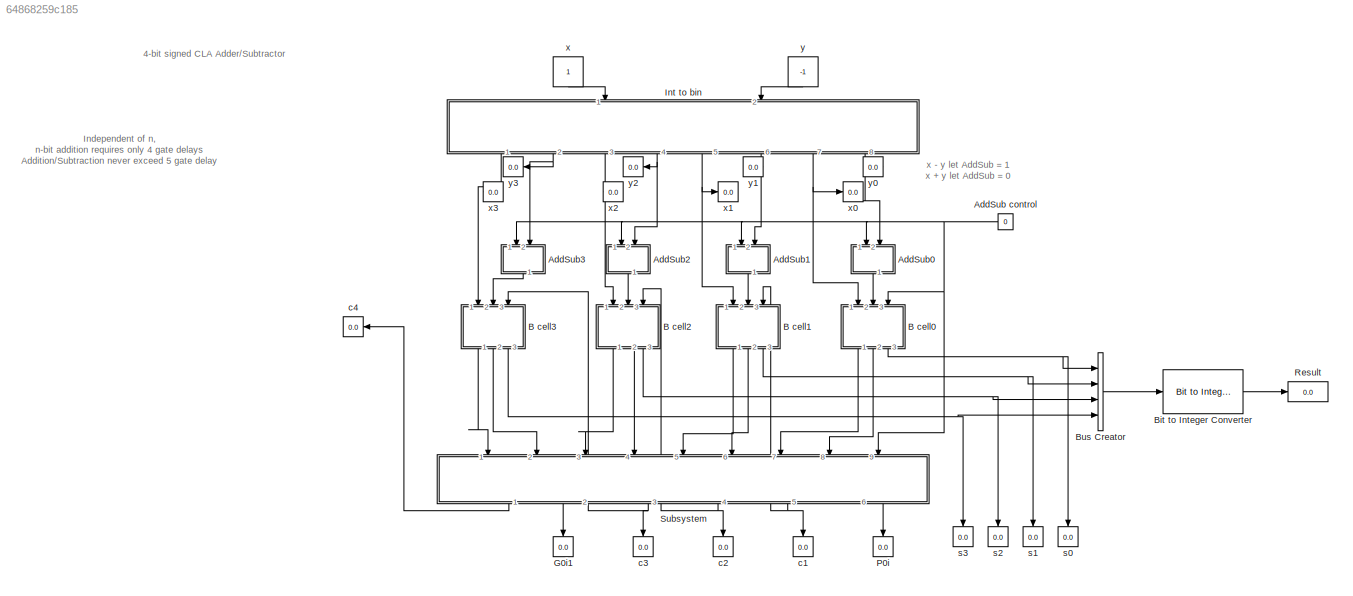
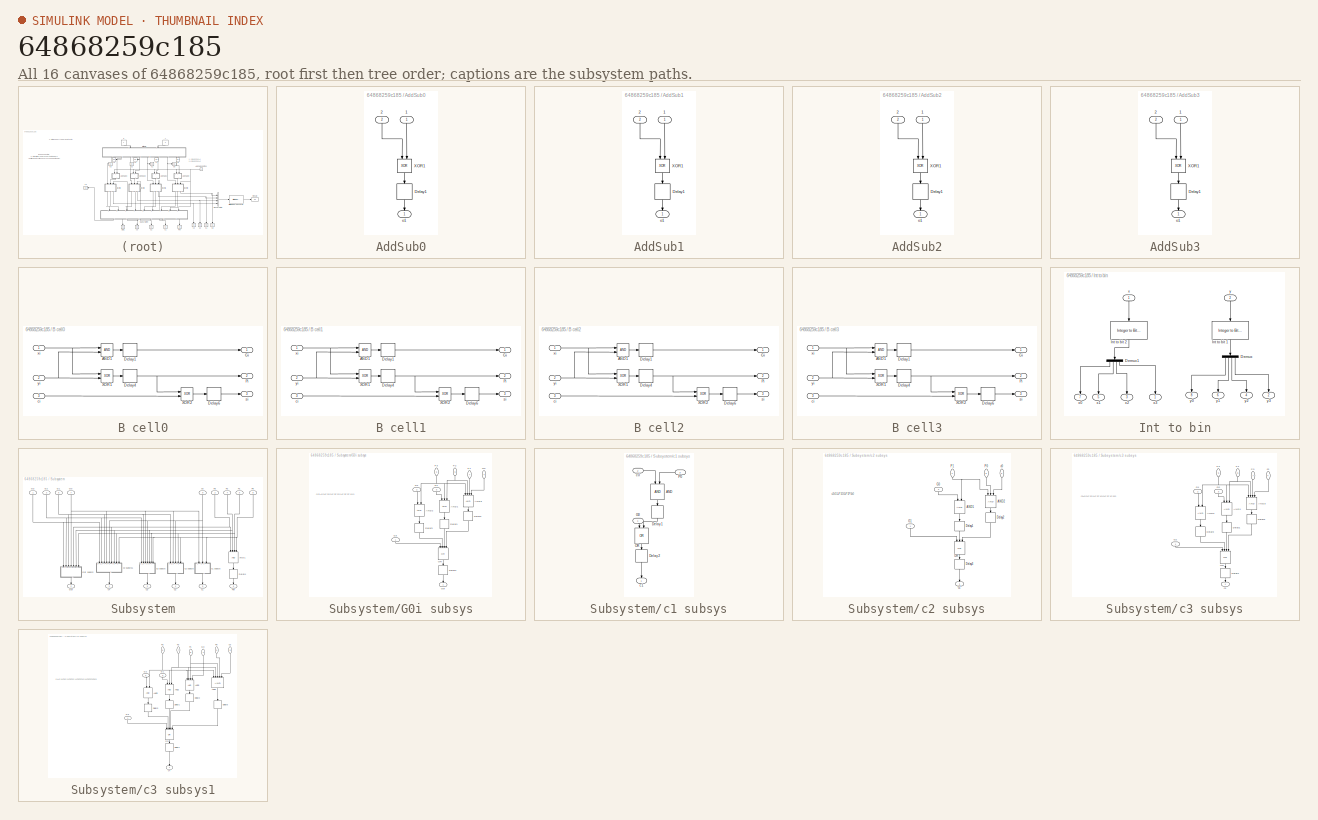
[diagram: thumbnail index - all 16 canvases of the model, root first then tree order]
MODEL slx_64868259c185
KIND model
CONFIG AbsTol = auto
CONFIG FixedStep = 1
CONFIG MaxStep = auto
CONFIG MinStep = auto
CONFIG RelTol = 1e-3
CONFIG SampleTimeConstraint = Unconstrained
CONFIG Solver = ode1
CONFIG SolverMode = Auto
CONFIG SolverName = ode1
CONFIG StartTime = 0.0
CONFIG StopTime = 10.0
BLOCK [Constant] AddSub control
  OutDataTypeStr = boolean
  OutMax = 1
  OutMin = 0
  Value = 0
BLOCK [SubSystem] AddSub0
  Ports = [2, 1]
  RequestExecContextInheritance = off
BLOCK [Inport] AddSub0/1
  IconDisplay = Port number
BLOCK [Inport] AddSub0/2
  IconDisplay = Port number
  Port = 2
BLOCK [Delay] AddSub0/Delay1
  DelayLength = 1
  InitialCondition = 0
  InputPortMap = u0
  InputProcessing = Inherited
  Ports = [1, 1]
BLOCK [Logic] AddSub0/XOR1
  AllPortsSameDT = off
  IconShape = distinctive
  Operator = XOR
  OutDataTypeStr = boolean
  Ports = [2, 1]
BLOCK [Outport] AddSub0/o1
  IconDisplay = Port number
BLOCK [SubSystem] AddSub1
  Ports = [2, 1]
  RequestExecContextInheritance = off
BLOCK [Inport] AddSub1/1
  IconDisplay = Port number
BLOCK [Inport] AddSub1/2
  IconDisplay = Port number
  Port = 2
BLOCK [Delay] AddSub1/Delay1
  DelayLength = 1
  InitialCondition = 0
  InputPortMap = u0
  InputProcessing = Inherited
  Ports = [1, 1]
BLOCK [Logic] AddSub1/XOR1
  AllPortsSameDT = off
  IconShape = distinctive
  Operator = XOR
  OutDataTypeStr = boolean
  Ports = [2, 1]
BLOCK [Outport] AddSub1/o1
  IconDisplay = Port number
BLOCK [SubSystem] AddSub2
  Ports = [2, 1]
  RequestExecContextInheritance = off
BLOCK [Inport] AddSub2/1
  IconDisplay = Port number
BLOCK [Inport] AddSub2/2
  IconDisplay = Port number
  Port = 2
BLOCK [Delay] AddSub2/Delay1
  DelayLength = 1
  InitialCondition = 0
  InputPortMap = u0
  InputProcessing = Inherited
  Ports = [1, 1]
BLOCK [Logic] AddSub2/XOR1
  AllPortsSameDT = off
  IconShape = distinctive
  Operator = XOR
  OutDataTypeStr = boolean
  Ports = [2, 1]
BLOCK [Outport] AddSub2/o1
  IconDisplay = Port number
BLOCK [SubSystem] AddSub3
  Ports = [2, 1]
  RequestExecContextInheritance = off
BLOCK [Inport] AddSub3/1
  IconDisplay = Port number
BLOCK [Inport] AddSub3/2
  IconDisplay = Port number
  Port = 2
BLOCK [Delay] AddSub3/Delay1
  DelayLength = 1
  InitialCondition = 0
  InputPortMap = u0
  InputProcessing = Inherited
  Ports = [1, 1]
BLOCK [Logic] AddSub3/XOR1
  AllPortsSameDT = off
  IconShape = distinctive
  Operator = XOR
  OutDataTypeStr = boolean
  Ports = [2, 1]
BLOCK [Outport] AddSub3/o1
  IconDisplay = Port number
BLOCK [SubSystem] B cell0
  Ports = [3, 3]
  RequestExecContextInheritance = off
BLOCK [Logic] B cell0/AND1
  AllPortsSameDT = off
  IconShape = distinctive
  OutDataTypeStr = boolean
  Ports = [2, 1]
BLOCK [Delay] B cell0/Delay1
  DelayLength = 1
  InitialCondition = 0
  InputPortMap = u0
  InputProcessing = Inherited
  Ports = [1, 1]
BLOCK [Delay] B cell0/Delay4
  DelayLength = 1
  InitialCondition = 0
  InputPortMap = u0
  InputProcessing = Inherited
  Ports = [1, 1]
BLOCK [Delay] B cell0/Delay6
  DelayLength = 1
  InitialCondition = 0
  InputPortMap = u0
  InputProcessing = Inherited
  Ports = [1, 1]
BLOCK [Outport] B cell0/Gi
  IconDisplay = Port number
BLOCK [Outport] B cell0/Pi
  IconDisplay = Port number
  Port = 2
BLOCK [Logic] B cell0/XOR1
  AllPortsSameDT = off
  IconShape = distinctive
  Operator = XOR
  OutDataTypeStr = boolean
  Ports = [2, 1]
BLOCK [Logic] B cell0/XOR2
  AllPortsSameDT = off
  IconShape = distinctive
  Operator = XOR
  OutDataTypeStr = boolean
  Ports = [2, 1]
BLOCK [Inport] B cell0/ci
  IconDisplay = Port number
  Port = 3
BLOCK [Outport] B cell0/si
  IconDisplay = Port number
  Port = 3
BLOCK [Inport] B cell0/xi
  IconDisplay = Port number
BLOCK [Inport] B cell0/yi
  IconDisplay = Port number
  Port = 2
BLOCK [SubSystem] B cell1
  Ports = [3, 3]
  RequestExecContextInheritance = off
BLOCK [Logic] B cell1/AND1
  AllPortsSameDT = off
  IconShape = distinctive
  OutDataTypeStr = boolean
  Ports = [2, 1]
BLOCK [Delay] B cell1/Delay1
  DelayLength = 1
  InitialCondition = 0
  InputPortMap = u0
  InputProcessing = Inherited
  Ports = [1, 1]
BLOCK [Delay] B cell1/Delay4
  DelayLength = 1
  InitialCondition = 0
  InputPortMap = u0
  InputProcessing = Inherited
  Ports = [1, 1]
BLOCK [Delay] B cell1/Delay6
  DelayLength = 1
  InitialCondition = 0
  InputPortMap = u0
  InputProcessing = Inherited
  Ports = [1, 1]
BLOCK [Outport] B cell1/Gi
  IconDisplay = Port number
BLOCK [Outport] B cell1/Pi
  IconDisplay = Port number
  Port = 2
BLOCK [Logic] B cell1/XOR1
  AllPortsSameDT = off
  IconShape = distinctive
  Operator = XOR
  OutDataTypeStr = boolean
  Ports = [2, 1]
BLOCK [Logic] B cell1/XOR2
  AllPortsSameDT = off
  IconShape = distinctive
  Operator = XOR
  OutDataTypeStr = boolean
  Ports = [2, 1]
BLOCK [Inport] B cell1/ci
  IconDisplay = Port number
  Port = 3
BLOCK [Outport] B cell1/si
  IconDisplay = Port number
  Port = 3
BLOCK [Inport] B cell1/xi
  IconDisplay = Port number
BLOCK [Inport] B cell1/yi
  IconDisplay = Port number
  Port = 2
BLOCK [SubSystem] B cell2
  Ports = [3, 3]
  RequestExecContextInheritance = off
BLOCK [Logic] B cell2/AND1
  AllPortsSameDT = off
  IconShape = distinctive
  OutDataTypeStr = boolean
  Ports = [2, 1]
BLOCK [Delay] B cell2/Delay1
  DelayLength = 1
  InitialCondition = 0
  InputPortMap = u0
  InputProcessing = Inherited
  Ports = [1, 1]
BLOCK [Delay] B cell2/Delay4
  DelayLength = 1
  InitialCondition = 0
  InputPortMap = u0
  InputProcessing = Inherited
  Ports = [1, 1]
BLOCK [Delay] B cell2/Delay6
  DelayLength = 1
  InitialCondition = 0
  InputPortMap = u0
  InputProcessing = Inherited
  Ports = [1, 1]
BLOCK [Outport] B cell2/Gi
  IconDisplay = Port number
BLOCK [Outport] B cell2/Pi
  IconDisplay = Port number
  Port = 2
BLOCK [Logic] B cell2/XOR1
  AllPortsSameDT = off
  IconShape = distinctive
  Operator = XOR
  OutDataTypeStr = boolean
  Ports = [2, 1]
BLOCK [Logic] B cell2/XOR2
  AllPortsSameDT = off
  IconShape = distinctive
  Operator = XOR
  OutDataTypeStr = boolean
  Ports = [2, 1]
BLOCK [Inport] B cell2/ci
  IconDisplay = Port number
  Port = 3
BLOCK [Outport] B cell2/si
  IconDisplay = Port number
  Port = 3
BLOCK [Inport] B cell2/xi
  IconDisplay = Port number
BLOCK [Inport] B cell2/yi
  IconDisplay = Port number
  Port = 2
BLOCK [SubSystem] B cell3
  Ports = [3, 3]
  RequestExecContextInheritance = off
BLOCK [Logic] B cell3/AND1
  AllPortsSameDT = off
  IconShape = distinctive
  OutDataTypeStr = boolean
  Ports = [2, 1]
BLOCK [Delay] B cell3/Delay1
  DelayLength = 1
  InitialCondition = 0
  InputPortMap = u0
  InputProcessing = Inherited
  Ports = [1, 1]
BLOCK [Delay] B cell3/Delay4
  DelayLength = 1
  InitialCondition = 0
  InputPortMap = u0
  InputProcessing = Inherited
  Ports = [1, 1]
BLOCK [Delay] B cell3/Delay6
  DelayLength = 1
  InitialCondition = 0
  InputPortMap = u0
  InputProcessing = Inherited
  Ports = [1, 1]
BLOCK [Outport] B cell3/Gi
  IconDisplay = Port number
BLOCK [Outport] B cell3/Pi
  IconDisplay = Port number
  Port = 2
BLOCK [Logic] B cell3/XOR1
  AllPortsSameDT = off
  IconShape = distinctive
  Operator = XOR
  OutDataTypeStr = boolean
  Ports = [2, 1]
BLOCK [Logic] B cell3/XOR2
  AllPortsSameDT = off
  IconShape = distinctive
  Operator = XOR
  OutDataTypeStr = boolean
  Ports = [2, 1]
BLOCK [Inport] B cell3/ci
  IconDisplay = Port number
  Port = 3
BLOCK [Outport] B cell3/si
  IconDisplay = Port number
  Port = 3
BLOCK [Inport] B cell3/xi
  IconDisplay = Port number
BLOCK [Inport] B cell3/yi
  IconDisplay = Port number
  Port = 2
BLOCK [Reference] Bit to Integer Converter  REF=commutil2/Bit to Integer
Converter
  Ports = [1, 1]
  SourceBlock = commutil2/Bit to Integer\nConverter
  SourceType = Bit to Integer Converter
  bitOrder = LSB first
  nbits = 4
  outDtype = Inherit via internal rule
  outDtypeSigned = Inherit via internal rule
  signedOutputValues = Signed
BLOCK [BusCreator] Bus Creator
  DisplayOption = bar
  Ports = [4, 1]
BLOCK [Display] G0i1
  Decimation = 1
  Ports = [1]
BLOCK [SubSystem] Int to bin
  Ports = [2, 8]
  RequestExecContextInheritance = off
BLOCK [Demux] Int to bin/Demux
  DisplayOption = bar
  Ports = [1, 4]
BLOCK [Demux] Int to bin/Demux1
  DisplayOption = bar
  Ports = [1, 4]
BLOCK [Reference] Int to bin/Int to bit 1  REF=commutil2/Integer to Bit
Converter
  Ports = [1, 1]
  SourceBlock = commutil2/Integer to Bit\nConverter
  SourceType = Integer to Bit Converter
  bitOrder = LSB first
  nbits = 4
  outDtype = Inherit via internal rule
  signedInputValues = Signed
BLOCK [Reference] Int to bin/Int to bit 2  REF=commutil2/Integer to Bit
Converter
  Ports = [1, 1]
  SourceBlock = commutil2/Integer to Bit\nConverter
  SourceType = Integer to Bit Converter
  bitOrder = LSB first
  nbits = 4
  outDtype = Inherit via internal rule
  signedInputValues = Signed
BLOCK [Inport] Int to bin/x
  IconDisplay = Port number
BLOCK [Outport] Int to bin/x0
  IconDisplay = Port number
  Port = 7
BLOCK [Outport] Int to bin/x1
  IconDisplay = Port number
  Port = 5
BLOCK [Outport] Int to bin/x2
  IconDisplay = Port number
  Port = 3
BLOCK [Outport] Int to bin/x3
  IconDisplay = Port number
BLOCK [Inport] Int to bin/y
  IconDisplay = Port number
  Port = 2
BLOCK [Outport] Int to bin/y0
  IconDisplay = Port number
  Port = 8
BLOCK [Outport] Int to bin/y1
  IconDisplay = Port number
  Port = 6
BLOCK [Outport] Int to bin/y2
  IconDisplay = Port number
  Port = 4
BLOCK [Outport] Int to bin/y3
  IconDisplay = Port number
  Port = 2
BLOCK [Display] P0i
  Decimation = 1
  Ports = [1]
BLOCK [Display] Result
  Decimation = 1
  Ports = [1]
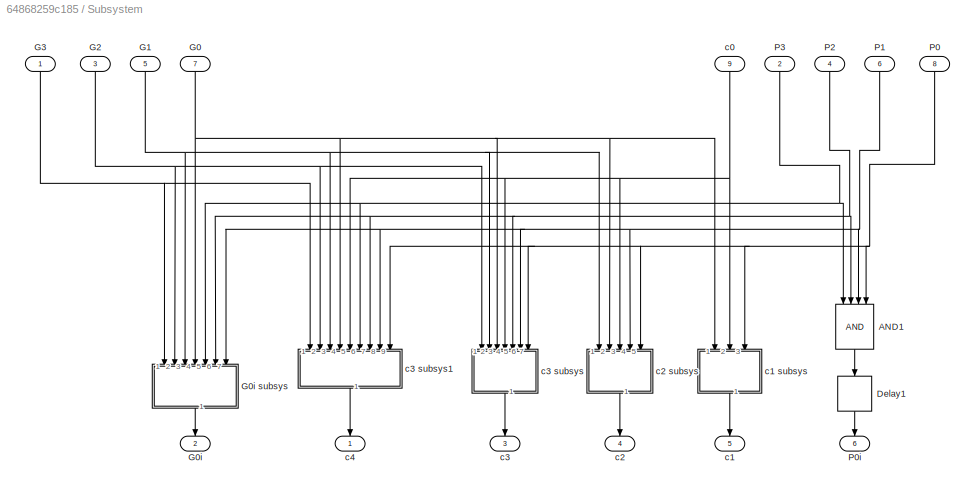
BLOCK [SubSystem] Subsystem
  Ports = [9, 6]
  RequestExecContextInheritance = off
BLOCK [Logic] Subsystem/AND1
  AllPortsSameDT = off
  IconShape = distinctive
  Inputs = 4
  OutDataTypeStr = boolean
  Ports = [4, 1]
BLOCK [Delay] Subsystem/Delay1
  DelayLength = 1
  InitialCondition = 0
  InputPortMap = u0
  InputProcessing = Inherited
  Ports = [1, 1]
BLOCK [Inport] Subsystem/G0
  IconDisplay = Port number
  Port = 7
BLOCK [Outport] Subsystem/G0i
  IconDisplay = Port number
  Port = 2
BLOCK [SubSystem] Subsystem/G0i subsys
  Ports = [7, 1]
  RequestExecContextInheritance = off
BLOCK [Logic] Subsystem/G0i subsys/AND1
  AllPortsSameDT = off
  IconShape = distinctive
  Inputs = 3
  OutDataTypeStr = boolean
  Ports = [3, 1]
BLOCK [Logic] Subsystem/G0i subsys/AND2
  AllPortsSameDT = off
  IconShape = distinctive
  OutDataTypeStr = boolean
  Ports = [2, 1]
BLOCK [Logic] Subsystem/G0i subsys/AND3
  AllPortsSameDT = off
  IconShape = distinctive
  Inputs = 4
  OutDataTypeStr = boolean
  Ports = [4, 1]
BLOCK [Delay] Subsystem/G0i subsys/Delay1
  DelayLength = 1
  InitialCondition = 0
  InputPortMap = u0
  InputProcessing = Inherited
  Ports = [1, 1]
BLOCK [Delay] Subsystem/G0i subsys/Delay2
  DelayLength = 1
  InitialCondition = 0
  InputPortMap = u0
  InputProcessing = Inherited
  Ports = [1, 1]
BLOCK [Delay] Subsystem/G0i subsys/Delay3
  DelayLength = 1
  InitialCondition = 0
  InputPortMap = u0
  InputProcessing = Inherited
  Ports = [1, 1]
BLOCK [Delay] Subsystem/G0i subsys/Delay4
  DelayLength = 1
  InitialCondition = 0
  InputPortMap = u0
  InputProcessing = Inherited
  Ports = [1, 1]
BLOCK [Inport] Subsystem/G0i subsys/G0
  IconDisplay = Port number
  Port = 4
BLOCK [Outport] Subsystem/G0i subsys/G0i
  IconDisplay = Port number
BLOCK [Inport] Subsystem/G0i subsys/G1
  IconDisplay = Port number
  Port = 3
BLOCK [Inport] Subsystem/G0i subsys/G2
  IconDisplay = Port number
  Port = 2
BLOCK [Inport] Subsystem/G0i subsys/G3
  IconDisplay = Port number
BLOCK [Logic] Subsystem/G0i subsys/OR
  AllPortsSameDT = off
  IconShape = distinctive
  Inputs = 4
  Operator = OR
  OutDataTypeStr = boolean
  Ports = [4, 1]
BLOCK [Inport] Subsystem/G0i subsys/P1
  IconDisplay = Port number
  Port = 7
BLOCK [Inport] Subsystem/G0i subsys/P2
  IconDisplay = Port number
  Port = 6
BLOCK [Inport] Subsystem/G0i subsys/P3
  IconDisplay = Port number
  Port = 5
BLOCK [Inport] Subsystem/G1
  IconDisplay = Port number
  Port = 5
BLOCK [Inport] Subsystem/G2
  IconDisplay = Port number
  Port = 3
BLOCK [Inport] Subsystem/G3
  IconDisplay = Port number
BLOCK [Inport] Subsystem/P0
  IconDisplay = Port number
  Port = 8
BLOCK [Outport] Subsystem/P0i
  IconDisplay = Port number
  Port = 6
BLOCK [Inport] Subsystem/P1
  IconDisplay = Port number
  Port = 6
BLOCK [Inport] Subsystem/P2
  IconDisplay = Port number
  Port = 4
BLOCK [Inport] Subsystem/P3
  IconDisplay = Port number
  Port = 2
BLOCK [Inport] Subsystem/c0
  IconDisplay = Port number
  Port = 9
BLOCK [Outport] Subsystem/c1
  IconDisplay = Port number
  Port = 5
BLOCK [SubSystem] Subsystem/c1 subsys
  Ports = [3, 1]
  RequestExecContextInheritance = off
BLOCK [Logic] Subsystem/c1 subsys/AND
  AllPortsSameDT = off
  IconShape = distinctive
  OutDataTypeStr = boolean
  Ports = [2, 1]
BLOCK [Delay] Subsystem/c1 subsys/Delay1
  DelayLength = 1
  InitialCondition = 0
  InputPortMap = u0
  InputProcessing = Inherited
  Ports = [1, 1]
BLOCK [Delay] Subsystem/c1 subsys/Delay2
  DelayLength = 1
  InitialCondition = 0
  InputPortMap = u0
  InputProcessing = Inherited
  Ports = [1, 1]
BLOCK [Inport] Subsystem/c1 subsys/G0
  IconDisplay = Port number
BLOCK [Logic] Subsystem/c1 subsys/OR
  AllPortsSameDT = off
  IconShape = distinctive
  Operator = OR
  OutDataTypeStr = boolean
  Ports = [2, 1]
BLOCK [Inport] Subsystem/c1 subsys/P0
  IconDisplay = Port number
  Port = 3
BLOCK [Inport] Subsystem/c1 subsys/c0
  IconDisplay = Port number
  Port = 2
BLOCK [Outport] Subsystem/c1 subsys/c1
  IconDisplay = Port number
BLOCK [Outport] Subsystem/c2
  IconDisplay = Port number
  Port = 4
BLOCK [SubSystem] Subsystem/c2 subsys
  Ports = [5, 1]
  RequestExecContextInheritance = off
BLOCK [Logic] Subsystem/c2 subsys/AND1
  AllPortsSameDT = off
  IconShape = distinctive
  OutDataTypeStr = boolean
  Ports = [2, 1]
BLOCK [Logic] Subsystem/c2 subsys/AND2
  AllPortsSameDT = off
  IconShape = distinctive
  Inputs = 3
  OutDataTypeStr = boolean
  Ports = [3, 1]
BLOCK [Delay] Subsystem/c2 subsys/Delay1
  DelayLength = 1
  InitialCondition = 0
  InputPortMap = u0
  InputProcessing = Inherited
  Ports = [1, 1]
BLOCK [Delay] Subsystem/c2 subsys/Delay2
  DelayLength = 1
  InitialCondition = 0
  InputPortMap = u0
  InputProcessing = Inherited
  Ports = [1, 1]
BLOCK [Delay] Subsystem/c2 subsys/Delay3
  DelayLength = 1
  InitialCondition = 0
  InputPortMap = u0
  InputProcessing = Inherited
  Ports = [1, 1]
BLOCK [Inport] Subsystem/c2 subsys/G0
  IconDisplay = Port number
  Port = 2
BLOCK [Inport] Subsystem/c2 subsys/G1
  IconDisplay = Port number
BLOCK [Logic] Subsystem/c2 subsys/OR
  AllPortsSameDT = off
  IconShape = distinctive
  Inputs = 3
  Operator = OR
  OutDataTypeStr = boolean
  Ports = [3, 1]
BLOCK [Inport] Subsystem/c2 subsys/P0
  IconDisplay = Port number
  Port = 5
BLOCK [Inport] Subsystem/c2 subsys/P1
  IconDisplay = Port number
  Port = 4
BLOCK [Inport] Subsystem/c2 subsys/c0
  IconDisplay = Port number
  Port = 3
BLOCK [Outport] Subsystem/c2 subsys/c2
  IconDisplay = Port number
BLOCK [Outport] Subsystem/c3
  IconDisplay = Port number
  Port = 3
BLOCK [SubSystem] Subsystem/c3 subsys
  Ports = [7, 1]
  RequestExecContextInheritance = off
BLOCK [Logic] Subsystem/c3 subsys/AND1
  AllPortsSameDT = off
  IconShape = distinctive
  Inputs = 3
  OutDataTypeStr = boolean
  Ports = [3, 1]
BLOCK [Logic] Subsystem/c3 subsys/AND2
  AllPortsSameDT = off
  IconShape = distinctive
  OutDataTypeStr = boolean
  Ports = [2, 1]
BLOCK [Logic] Subsystem/c3 subsys/AND3
  AllPortsSameDT = off
  IconShape = distinctive
  Inputs = 4
  OutDataTypeStr = boolean
  Ports = [4, 1]
BLOCK [Delay] Subsystem/c3 subsys/Delay1
  DelayLength = 1
  InitialCondition = 0
  InputPortMap = u0
  InputProcessing = Inherited
  Ports = [1, 1]
BLOCK [Delay] Subsystem/c3 subsys/Delay2
  DelayLength = 1
  InitialCondition = 0
  InputPortMap = u0
  InputProcessing = Inherited
  Ports = [1, 1]
BLOCK [Delay] Subsystem/c3 subsys/Delay3
  DelayLength = 1
  InitialCondition = 0
  InputPortMap = u0
  InputProcessing = Inherited
  Ports = [1, 1]
BLOCK [Delay] Subsystem/c3 subsys/Delay4
  DelayLength = 1
  InitialCondition = 0
  InputPortMap = u0
  InputProcessing = Inherited
  Ports = [1, 1]
BLOCK [Inport] Subsystem/c3 subsys/G0
  IconDisplay = Port number
  Port = 3
BLOCK [Inport] Subsystem/c3 subsys/G1
  IconDisplay = Port number
  Port = 2
BLOCK [Inport] Subsystem/c3 subsys/G2
  IconDisplay = Port number
BLOCK [Logic] Subsystem/c3 subsys/OR
  AllPortsSameDT = off
  IconShape = distinctive
  Inputs = 4
  Operator = OR
  OutDataTypeStr = boolean
  Ports = [4, 1]
BLOCK [Inport] Subsystem/c3 subsys/P0
  IconDisplay = Port number
  Port = 7
BLOCK [Inport] Subsystem/c3 subsys/P1
  IconDisplay = Port number
  Port = 6
BLOCK [Inport] Subsystem/c3 subsys/P2
  IconDisplay = Port number
  Port = 5
BLOCK [Inport] Subsystem/c3 subsys/c0
  IconDisplay = Port number
  Port = 4
BLOCK [Outport] Subsystem/c3 subsys/c3
  IconDisplay = Port number
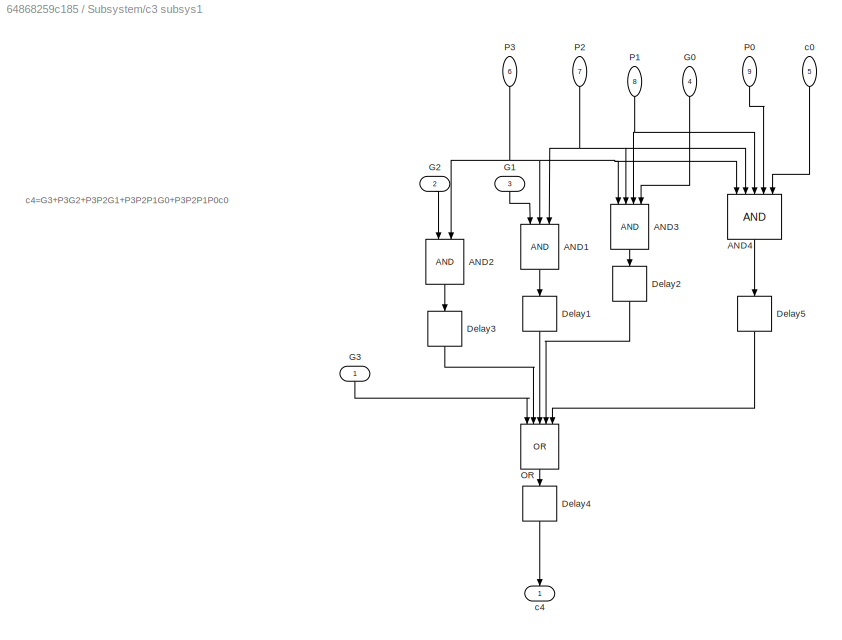
BLOCK [SubSystem] Subsystem/c3 subsys1
  Ports = [9, 1]
  RequestExecContextInheritance = off
BLOCK [Logic] Subsystem/c3 subsys1/AND1
  AllPortsSameDT = off
  IconShape = distinctive
  Inputs = 3
  OutDataTypeStr = boolean
  Ports = [3, 1]
BLOCK [Logic] Subsystem/c3 subsys1/AND2
  AllPortsSameDT = off
  IconShape = distinctive
  OutDataTypeStr = boolean
  Ports = [2, 1]
BLOCK [Logic] Subsystem/c3 subsys1/AND3
  AllPortsSameDT = off
  IconShape = distinctive
  Inputs = 4
  OutDataTypeStr = boolean
  Ports = [4, 1]
BLOCK [Logic] Subsystem/c3 subsys1/AND4
  AllPortsSameDT = off
  IconShape = distinctive
  Inputs = 5
  OutDataTypeStr = boolean
  Ports = [5, 1]
BLOCK [Delay] Subsystem/c3 subsys1/Delay1
  DelayLength = 1
  InitialCondition = 0
  InputPortMap = u0
  InputProcessing = Inherited
  Ports = [1, 1]
BLOCK [Delay] Subsystem/c3 subsys1/Delay2
  DelayLength = 1
  InitialCondition = 0
  InputPortMap = u0
  InputProcessing = Inherited
  Ports = [1, 1]
BLOCK [Delay] Subsystem/c3 subsys1/Delay3
  DelayLength = 1
  InitialCondition = 0
  InputPortMap = u0
  InputProcessing = Inherited
  Ports = [1, 1]
BLOCK [Delay] Subsystem/c3 subsys1/Delay4
  DelayLength = 1
  InitialCondition = 0
  InputPortMap = u0
  InputProcessing = Inherited
  Ports = [1, 1]
BLOCK [Delay] Subsystem/c3 subsys1/Delay5
  DelayLength = 1
  InitialCondition = 0
  InputPortMap = u0
  InputProcessing = Inherited
  Ports = [1, 1]
BLOCK [Inport] Subsystem/c3 subsys1/G0
  IconDisplay = Port number
  Port = 4
BLOCK [Inport] Subsystem/c3 subsys1/G1
  IconDisplay = Port number
  Port = 3
BLOCK [Inport] Subsystem/c3 subsys1/G2
  IconDisplay = Port number
  Port = 2
BLOCK [Inport] Subsystem/c3 subsys1/G3
  IconDisplay = Port number
BLOCK [Logic] Subsystem/c3 subsys1/OR
  AllPortsSameDT = off
  IconShape = distinctive
  Inputs = 5
  Operator = OR
  OutDataTypeStr = boolean
  Ports = [5, 1]
BLOCK [Inport] Subsystem/c3 subsys1/P0
  IconDisplay = Port number
  Port = 9
BLOCK [Inport] Subsystem/c3 subsys1/P1
  IconDisplay = Port number
  Port = 8
BLOCK [Inport] Subsystem/c3 subsys1/P2
  IconDisplay = Port number
  Port = 7
BLOCK [Inport] Subsystem/c3 subsys1/P3
  IconDisplay = Port number
  Port = 6
BLOCK [Inport] Subsystem/c3 subsys1/c0
  IconDisplay = Port number
  Port = 5
BLOCK [Outport] Subsystem/c3 subsys1/c4
  IconDisplay = Port number
BLOCK [Outport] Subsystem/c4
  IconDisplay = Port number
BLOCK [Display] c1
  Decimation = 1
  Ports = [1]
BLOCK [Display] c2
  Decimation = 1
  Ports = [1]
BLOCK [Display] c3
  Decimation = 1
  Ports = [1]
BLOCK [Display] c4
  Decimation = 1
  Ports = [1]
BLOCK [Display] s0
  Decimation = 1
  Ports = [1]
BLOCK [Display] s1
  Decimation = 1
  Ports = [1]
BLOCK [Display] s2
  Decimation = 1
  Ports = [1]
BLOCK [Display] s3
  Decimation = 1
  Ports = [1]
BLOCK [Constant] x
  OutDataTypeStr = int8
  OutMax = 7
  OutMin = -8
  SampleTime = 1
BLOCK [Display] x0
  Decimation = 1
  Ports = [1]
BLOCK [Display] x1
  Decimation = 1
  Ports = [1]
BLOCK [Display] x2
  Decimation = 1
  Ports = [1]
BLOCK [Display] x3
  Decimation = 1
  Ports = [1]
BLOCK [Constant] y
  OutDataTypeStr = int8
  OutMax = 7
  OutMin = -8
  SampleTime = 1
  Value = -1
BLOCK [Display] y0
  Decimation = 1
  Ports = [1]
BLOCK [Display] y1
  Decimation = 1
  Ports = [1]
BLOCK [Display] y2
  Decimation = 1
  Ports = [1]
BLOCK [Display] y3
  Decimation = 1
  Ports = [1]
ANNOTATION (root): 4-bit signed CLA Adder/Subtractor
ANNOTATION (root): Independent of n , n -bit addition requires only 4 gate delays Addition/Subtraction never exceed 5 gate delay
ANNOTATION (root): x - y let AddSub = 1 x + y let AddSub = 0
ANNOTATION Subsystem/G0i subsys: G0i=G3+P3G2+P3P2G1+P3P2P1G0
ANNOTATION Subsystem/c2 subsys: c2=G1+P1G0+P1P0c0
ANNOTATION Subsystem/c3 subsys: c3=G2+P2G1+P2P1G0+P2P1P0c0
ANNOTATION Subsystem/c3 subsys1: c4=G3+P3G2+P3P2G1+P3P2P1G0+P3P2P1P0c0
NET AddSub control:1 -> AddSub0:1, AddSub1:1, AddSub2:1, AddSub3:1, B cell0:3, Subsystem:9
LINE AddSub0/1:1 -> AddSub0/XOR1:2
LINE AddSub0/2:1 -> AddSub0/XOR1:1
LINE AddSub0/Delay1:1 -> AddSub0/o1:1
LINE AddSub0/XOR1:1 -> AddSub0/Delay1:1
LINE AddSub0:1 -> B cell0:2
LINE AddSub1/1:1 -> AddSub1/XOR1:2
LINE AddSub1/2:1 -> AddSub1/XOR1:1
LINE AddSub1/Delay1:1 -> AddSub1/o1:1
LINE AddSub1/XOR1:1 -> AddSub1/Delay1:1
LINE AddSub1:1 -> B cell1:2
LINE AddSub2/1:1 -> AddSub2/XOR1:2
LINE AddSub2/2:1 -> AddSub2/XOR1:1
LINE AddSub2/Delay1:1 -> AddSub2/o1:1
LINE AddSub2/XOR1:1 -> AddSub2/Delay1:1
LINE AddSub2:1 -> B cell2:2
LINE AddSub3/1:1 -> AddSub3/XOR1:2
LINE AddSub3/2:1 -> AddSub3/XOR1:1
LINE AddSub3/Delay1:1 -> AddSub3/o1:1
LINE AddSub3/XOR1:1 -> AddSub3/Delay1:1
LINE AddSub3:1 -> B cell3:2
LINE B cell0/AND1:1 -> B cell0/Delay1:1
LINE B cell0/Delay1:1 -> B cell0/Gi:1
NET B cell0/Delay4:1 -> B cell0/Pi:1, B cell0/XOR2:1
LINE B cell0/Delay6:1 -> B cell0/si:1
LINE B cell0/XOR1:1 -> B cell0/Delay4:1
LINE B cell0/XOR2:1 -> B cell0/Delay6:1
LINE B cell0/ci:1 -> B cell0/XOR2:2
NET B cell0/xi:1 -> B cell0/AND1:1, B cell0/XOR1:1
NET B cell0/yi:1 -> B cell0/AND1:2, B cell0/XOR1:2
LINE B cell0:1 -> Subsystem:7
LINE B cell0:2 -> Subsystem:8
NET B cell0:3 -> Bus Creator:1, s0:1
LINE B cell1/AND1:1 -> B cell1/Delay1:1
LINE B cell1/Delay1:1 -> B cell1/Gi:1
NET B cell1/Delay4:1 -> B cell1/Pi:1, B cell1/XOR2:1
LINE B cell1/Delay6:1 -> B cell1/si:1
LINE B cell1/XOR1:1 -> B cell1/Delay4:1
LINE B cell1/XOR2:1 -> B cell1/Delay6:1
LINE B cell1/ci:1 -> B cell1/XOR2:2
NET B cell1/xi:1 -> B cell1/AND1:1, B cell1/XOR1:1
NET B cell1/yi:1 -> B cell1/AND1:2, B cell1/XOR1:2
LINE B cell1:1 -> Subsystem:5
LINE B cell1:2 -> Subsystem:6
NET B cell1:3 -> Bus Creator:2, s1:1
LINE B cell2/AND1:1 -> B cell2/Delay1:1
LINE B cell2/Delay1:1 -> B cell2/Gi:1
NET B cell2/Delay4:1 -> B cell2/Pi:1, B cell2/XOR2:1
LINE B cell2/Delay6:1 -> B cell2/si:1
LINE B cell2/XOR1:1 -> B cell2/Delay4:1
LINE B cell2/XOR2:1 -> B cell2/Delay6:1
LINE B cell2/ci:1 -> B cell2/XOR2:2
NET B cell2/xi:1 -> B cell2/AND1:1, B cell2/XOR1:1
NET B cell2/yi:1 -> B cell2/AND1:2, B cell2/XOR1:2
LINE B cell2:1 -> Subsystem:3
LINE B cell2:2 -> Subsystem:4
NET B cell2:3 -> Bus Creator:3, s2:1
LINE B cell3/AND1:1 -> B cell3/Delay1:1
LINE B cell3/Delay1:1 -> B cell3/Gi:1
NET B cell3/Delay4:1 -> B cell3/Pi:1, B cell3/XOR2:1
LINE B cell3/Delay6:1 -> B cell3/si:1
LINE B cell3/XOR1:1 -> B cell3/Delay4:1
LINE B cell3/XOR2:1 -> B cell3/Delay6:1
LINE B cell3/ci:1 -> B cell3/XOR2:2
NET B cell3/xi:1 -> B cell3/AND1:1, B cell3/XOR1:1
NET B cell3/yi:1 -> B cell3/AND1:2, B cell3/XOR1:2
LINE B cell3:1 -> Subsystem:1
LINE B cell3:2 -> Subsystem:2
NET B cell3:3 -> Bus Creator:4, s3:1
LINE Bit to Integer Converter:1 -> Result:1
LINE Bus Creator:1 -> Bit to Integer Converter:1
LINE Int to bin/Demux1:1 -> Int to bin/x0:1
LINE Int to bin/Demux1:2 -> Int to bin/x1:1
LINE Int to bin/Demux1:3 -> Int to bin/x2:1
LINE Int to bin/Demux1:4 -> Int to bin/x3:1
LINE Int to bin/Demux:1 -> Int to bin/y0:1
LINE Int to bin/Demux:2 -> Int to bin/y1:1
LINE Int to bin/Demux:3 -> Int to bin/y2:1
LINE Int to bin/Demux:4 -> Int to bin/y3:1
LINE Int to bin/Int to bit 1:1 -> Int to bin/Demux:1
LINE Int to bin/Int to bit 2:1 -> Int to bin/Demux1:1
LINE Int to bin/x:1 -> Int to bin/Int to bit 2:1
LINE Int to bin/y:1 -> Int to bin/Int to bit 1:1
NET Int to bin:1 -> B cell3:1, x3:1
NET Int to bin:2 -> AddSub3:2, y3:1
NET Int to bin:3 -> B cell2:1, x2:1
NET Int to bin:4 -> AddSub2:2, y2:1
NET Int to bin:5 -> B cell1:1, x1:1
NET Int to bin:6 -> AddSub1:2, y1:1
NET Int to bin:7 -> B cell0:1, x0:1
NET Int to bin:8 -> AddSub0:2, y0:1
LINE Subsystem/AND1:1 -> Subsystem/Delay1:1
LINE Subsystem/Delay1:1 -> Subsystem/P0i:1
NET Subsystem/G0:1 -> Subsystem/G0i subsys:4, Subsystem/c1 subsys:1, Subsystem/c2 subsys:2, Subsystem/c3 subsys1:4, Subsystem/c3 subsys:3
LINE Subsystem/G0i subsys/AND1:1 -> Subsystem/G0i subsys/Delay1:1
LINE Subsystem/G0i subsys/AND2:1 -> Subsystem/G0i subsys/Delay3:1
LINE Subsystem/G0i subsys/AND3:1 -> Subsystem/G0i subsys/Delay2:1
LINE Subsystem/G0i subsys/Delay1:1 -> Subsystem/G0i subsys/OR:3
LINE Subsystem/G0i subsys/Delay2:1 -> Subsystem/G0i subsys/OR:4
LINE Subsystem/G0i subsys/Delay3:1 -> Subsystem/G0i subsys/OR:2
LINE Subsystem/G0i subsys/Delay4:1 -> Subsystem/G0i subsys/G0i:1
LINE Subsystem/G0i subsys/G0:1 -> Subsystem/G0i subsys/AND3:4
LINE Subsystem/G0i subsys/G1:1 -> Subsystem/G0i subsys/AND1:1
LINE Subsystem/G0i subsys/G2:1 -> Subsystem/G0i subsys/AND2:1
LINE Subsystem/G0i subsys/G3:1 -> Subsystem/G0i subsys/OR:1
LINE Subsystem/G0i subsys/OR:1 -> Subsystem/G0i subsys/Delay4:1
LINE Subsystem/G0i subsys/P1:1 -> Subsystem/G0i subsys/AND3:3
NET Subsystem/G0i subsys/P2:1 -> Subsystem/G0i subsys/AND1:3, Subsystem/G0i subsys/AND3:2
NET Subsystem/G0i subsys/P3:1 -> Subsystem/G0i subsys/AND1:2, Subsystem/G0i subsys/AND2:2, Subsystem/G0i subsys/AND3:1
LINE Subsystem/G0i subsys:1 -> Subsystem/G0i:1
NET Subsystem/G1:1 -> Subsystem/G0i subsys:3, Subsystem/c2 subsys:1, Subsystem/c3 subsys1:3, Subsystem/c3 subsys:2
NET Subsystem/G2:1 -> Subsystem/G0i subsys:2, Subsystem/c3 subsys1:2, Subsystem/c3 subsys:1
NET Subsystem/G3:1 -> Subsystem/G0i subsys:1, Subsystem/c3 subsys1:1
NET Subsystem/P0:1 -> Subsystem/AND1:4, Subsystem/c1 subsys:3, Subsystem/c2 subsys:5, Subsystem/c3 subsys1:9, Subsystem/c3 subsys:7
NET Subsystem/P1:1 -> Subsystem/AND1:3, Subsystem/G0i subsys:7, Subsystem/c2 subsys:4, Subsystem/c3 subsys1:8, Subsystem/c3 subsys:6
NET Subsystem/P2:1 -> Subsystem/AND1:2, Subsystem/G0i subsys:6, Subsystem/c3 subsys1:7, Subsystem/c3 subsys:5
NET Subsystem/P3:1 -> Subsystem/AND1:1, Subsystem/G0i subsys:5, Subsystem/c3 subsys1:6
NET Subsystem/c0:1 -> Subsystem/c1 subsys:2, Subsystem/c2 subsys:3, Subsystem/c3 subsys1:5, Subsystem/c3 subsys:4
LINE Subsystem/c1 subsys/AND:1 -> Subsystem/c1 subsys/Delay1:1
LINE Subsystem/c1 subsys/Delay1:1 -> Subsystem/c1 subsys/OR:2
LINE Subsystem/c1 subsys/Delay2:1 -> Subsystem/c1 subsys/c1:1
LINE Subsystem/c1 subsys/G0:1 -> Subsystem/c1 subsys/OR:1
LINE Subsystem/c1 subsys/OR:1 -> Subsystem/c1 subsys/Delay2:1
LINE Subsystem/c1 subsys/P0:1 -> Subsystem/c1 subsys/AND:2
LINE Subsystem/c1 subsys/c0:1 -> Subsystem/c1 subsys/AND:1
LINE Subsystem/c1 subsys:1 -> Subsystem/c1:1
LINE Subsystem/c2 subsys/AND1:1 -> Subsystem/c2 subsys/Delay1:1
LINE Subsystem/c2 subsys/AND2:1 -> Subsystem/c2 subsys/Delay2:1
LINE Subsystem/c2 subsys/Delay1:1 -> Subsystem/c2 subsys/OR:2
LINE Subsystem/c2 subsys/Delay2:1 -> Subsystem/c2 subsys/OR:3
LINE Subsystem/c2 subsys/Delay3:1 -> Subsystem/c2 subsys/c2:1
LINE Subsystem/c2 subsys/G0:1 -> Subsystem/c2 subsys/AND1:1
LINE Subsystem/c2 subsys/G1:1 -> Subsystem/c2 subsys/OR:1
LINE Subsystem/c2 subsys/OR:1 -> Subsystem/c2 subsys/Delay3:1
LINE Subsystem/c2 subsys/P0:1 -> Subsystem/c2 subsys/AND2:2
NET Subsystem/c2 subsys/P1:1 -> Subsystem/c2 subsys/AND1:2, Subsystem/c2 subsys/AND2:1
LINE Subsystem/c2 subsys/c0:1 -> Subsystem/c2 subsys/AND2:3
LINE Subsystem/c2 subsys:1 -> Subsystem/c2:1
LINE Subsystem/c3 subsys/AND1:1 -> Subsystem/c3 subsys/Delay1:1
LINE Subsystem/c3 subsys/AND2:1 -> Subsystem/c3 subsys/Delay3:1
LINE Subsystem/c3 subsys/AND3:1 -> Subsystem/c3 subsys/Delay2:1
LINE Subsystem/c3 subsys/Delay1:1 -> Subsystem/c3 subsys/OR:3
LINE Subsystem/c3 subsys/Delay2:1 -> Subsystem/c3 subsys/OR:4
LINE Subsystem/c3 subsys/Delay3:1 -> Subsystem/c3 subsys/OR:2
LINE Subsystem/c3 subsys/Delay4:1 -> Subsystem/c3 subsys/c3:1
LINE Subsystem/c3 subsys/G0:1 -> Subsystem/c3 subsys/AND1:1
LINE Subsystem/c3 subsys/G1:1 -> Subsystem/c3 subsys/AND2:1
LINE Subsystem/c3 subsys/G2:1 -> Subsystem/c3 subsys/OR:1
LINE Subsystem/c3 subsys/OR:1 -> Subsystem/c3 subsys/Delay4:1
LINE Subsystem/c3 subsys/P0:1 -> Subsystem/c3 subsys/AND3:3
NET Subsystem/c3 subsys/P1:1 -> Subsystem/c3 subsys/AND1:3, Subsystem/c3 subsys/AND3:2
NET Subsystem/c3 subsys/P2:1 -> Subsystem/c3 subsys/AND1:2, Subsystem/c3 subsys/AND2:2, Subsystem/c3 subsys/AND3:1
LINE Subsystem/c3 subsys/c0:1 -> Subsystem/c3 subsys/AND3:4
LINE Subsystem/c3 subsys1/AND1:1 -> Subsystem/c3 subsys1/Delay1:1
LINE Subsystem/c3 subsys1/AND2:1 -> Subsystem/c3 subsys1/Delay3:1
LINE Subsystem/c3 subsys1/AND3:1 -> Subsystem/c3 subsys1/Delay2:1
LINE Subsystem/c3 subsys1/AND4:1 -> Subsystem/c3 subsys1/Delay5:1
LINE Subsystem/c3 subsys1/Delay1:1 -> Subsystem/c3 subsys1/OR:3
LINE Subsystem/c3 subsys1/Delay2:1 -> Subsystem/c3 subsys1/OR:4
LINE Subsystem/c3 subsys1/Delay3:1 -> Subsystem/c3 subsys1/OR:2
LINE Subsystem/c3 subsys1/Delay4:1 -> Subsystem/c3 subsys1/c4:1
LINE Subsystem/c3 subsys1/Delay5:1 -> Subsystem/c3 subsys1/OR:5
LINE Subsystem/c3 subsys1/G0:1 -> Subsystem/c3 subsys1/AND3:4
LINE Subsystem/c3 subsys1/G1:1 -> Subsystem/c3 subsys1/AND1:1
LINE Subsystem/c3 subsys1/G2:1 -> Subsystem/c3 subsys1/AND2:1
LINE Subsystem/c3 subsys1/G3:1 -> Subsystem/c3 subsys1/OR:1
LINE Subsystem/c3 subsys1/OR:1 -> Subsystem/c3 subsys1/Delay4:1
LINE Subsystem/c3 subsys1/P0:1 -> Subsystem/c3 subsys1/AND4:4
NET Subsystem/c3 subsys1/P1:1 -> Subsystem/c3 subsys1/AND3:3, Subsystem/c3 subsys1/AND4:3
NET Subsystem/c3 subsys1/P2:1 -> Subsystem/c3 subsys1/AND1:3, Subsystem/c3 subsys1/AND3:2, Subsystem/c3 subsys1/AND4:2
NET Subsystem/c3 subsys1/P3:1 -> Subsystem/c3 subsys1/AND1:2, Subsystem/c3 subsys1/AND2:2, Subsystem/c3 subsys1/AND3:1, Subsystem/c3 subsys1/AND4:1
LINE Subsystem/c3 subsys1/c0:1 -> Subsystem/c3 subsys1/AND4:5
LINE Subsystem/c3 subsys1:1 -> Subsystem/c4:1
LINE Subsystem/c3 subsys:1 -> Subsystem/c3:1
LINE Subsystem:1 -> c4:1
LINE Subsystem:2 -> G0i1:1
NET Subsystem:3 -> B cell3:3, c3:1
NET Subsystem:4 -> B cell2:3, c2:1
NET Subsystem:5 -> B cell1:3, c1:1
LINE Subsystem:6 -> P0i:1
LINE x:1 -> Int to bin:1
LINE y:1 -> Int to bin:2
note: NET lines group one-source signal fan-out (src -> all destinations, sorted); 1:1 wires keep LINE
